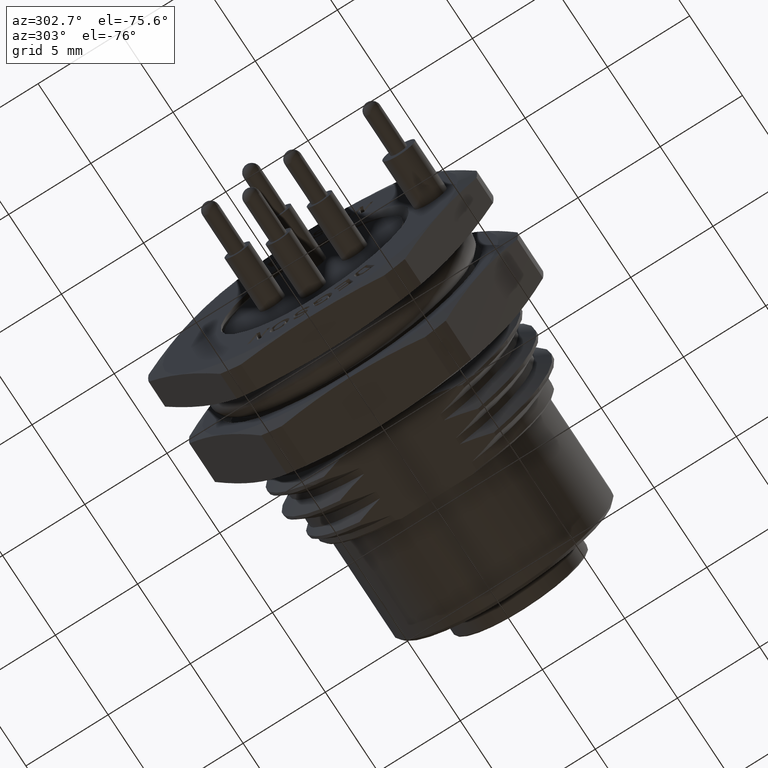
[diagram: clean part render]
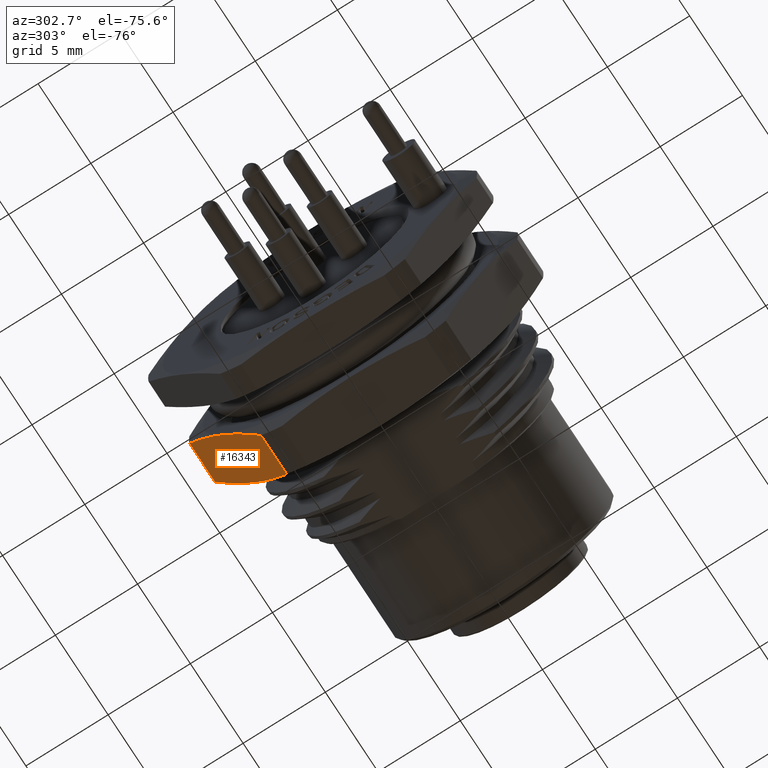
[diagram: same view with one face highlighted and labeled with its STEP entity id]
A machine part, auxiliary view. The second image highlights one B-rep face of the part: STEP entity #16343.
In plain terms, the highlighted planar face has unit normal (0, 0.866, -0.5).
Its self-contained STEP definition (entity closure, byte-faithful):
#4900=CARTESIAN_POINT('',(4.799999999996E0,7.794094807179E0,-4.500231787549E0));
#4901=CARTESIAN_POINT('',(4.800000000784E0,7.613175857834E0,-4.813571074240E0));
#4902=CARTESIAN_POINT('',(4.787489331623E0,7.251496517255E0,-5.439975034983E0));
#4903=CARTESIAN_POINT('',(4.731211796345E0,6.705928364109E0,-6.384861884185E0));
#4904=CARTESIAN_POINT('',(4.641583224885E0,6.167885164156E0,-7.316716027035E0));
#4905=CARTESIAN_POINT('',(4.559098535769E0,5.799772026627E0,-7.954262886315E0));
#4906=CARTESIAN_POINT('',(4.512706594883E0,5.614533010990E0,-8.275084233318E0));
#4908=DIRECTION('',(1.E0,0.E0,0.E0));
#4909=VECTOR('',#4908,2.425413189766E0);
#4910=CARTESIAN_POINT('',(2.087293405117E0,5.614533010990E0,-8.275084233318E0));
#4911=LINE('',#4910,#4909);
#4912=DIRECTION('',(-1.E0,0.E0,0.E0));
#4913=VECTOR('',#4912,2.425413189766E0);
#4914=CARTESIAN_POINT('',(4.512706594883E0,9.973656532832E0,
-7.253794628434E-1));
#4915=LINE('',#4914,#4913);
#4916=CARTESIAN_POINT('',(4.512706594883E0,9.973656532832E0,
-7.253794628434E-1));
#4917=CARTESIAN_POINT('',(4.559102528947E0,9.788401572778E0,-1.046228424491E0));
#4918=CARTESIAN_POINT('',(4.641590267305E0,9.420266095336E0,-1.683813974939E0));
#4919=CARTESIAN_POINT('',(4.731210939355E0,8.882265941672E0,-2.615593564727E0));
#4920=CARTESIAN_POINT('',(4.787490872801E0,8.336675538007E0,-3.560518949663E0));
#4921=CARTESIAN_POINT('',(4.799999999166E0,7.975007425193E0,-4.186903466290E0));
#4922=CARTESIAN_POINT('',(4.799999999996E0,7.794094807179E0,-4.500231787549E0));
#4960=CARTESIAN_POINT('',(1.8E0,7.794094772313E0,-4.500231847390E0));
#4961=CARTESIAN_POINT('',(1.800000000009E0,7.975013736285E0,-4.186892535364E0));
#4962=CARTESIAN_POINT('',(1.812510007759E0,8.336691358921E0,-3.560491549172E0));
#4963=CARTESIAN_POINT('',(1.868791857854E0,8.882286487798E0,-2.615557980169E0));
#4964=CARTESIAN_POINT('',(1.958413007921E0,9.420281820276E0,-1.683786740435E0));
#4965=CARTESIAN_POINT('',(2.040899042671E0,9.788407848114E0,-1.046217556036E0));
#4966=CARTESIAN_POINT('',(2.087293405117E0,9.973656532832E0,
-7.253794628434E-1));
#5141=CARTESIAN_POINT('',(2.087293405117E0,5.614533010990E0,-8.275084233318E0));
#5142=CARTESIAN_POINT('',(2.040899937584E0,5.799778122397E0,-7.954252328856E0));
#5143=CARTESIAN_POINT('',(1.958413593265E0,6.167900443315E0,-7.316689564592E0));
#5144=CARTESIAN_POINT('',(1.868785487649E0,6.705948307564E0,-6.384827343413E0));
#5145=CARTESIAN_POINT('',(1.812509808711E0,7.251511939826E0,-5.439948324394E0));
#5146=CARTESIAN_POINT('',(1.799999999991E0,7.613182011170E0,-4.813560416539E0));
#5147=CARTESIAN_POINT('',(1.8E0,7.794094772313E0,-4.500231847390E0));
#10448=VERTEX_POINT('',#4916);
#10449=VERTEX_POINT('',#4922);
#10459=CARTESIAN_POINT('',(2.087293405117E0,9.973656532831E0,
-7.253794628431E-1));
#10460=VERTEX_POINT('',#10459);
#10492=CARTESIAN_POINT('',(4.512706594883E0,5.614533010990E0,
-8.275084233318E0));
#10494=VERTEX_POINT('',#10492);
#10515=CARTESIAN_POINT('',(2.087293405117E0,5.614533010990E0,
-8.275084233318E0));
#10517=VERTEX_POINT('',#10515);
#10518=VERTEX_POINT('',#5147);
#16326=CARTESIAN_POINT('',(3.300000000149E0,7.794094771911E0,
-4.500231848081E0));
#16327=DIRECTION('',(0.E0,8.660105302122E-1,-5.000257608980E-1));
#16328=DIRECTION('',(0.E0,-5.000257608980E-1,-8.660105302122E-1));
#16329=AXIS2_PLACEMENT_3D('',#16326,#16327,#16328);
#16330=PLANE('',#16329);
#16331=ORIENTED_EDGE('',*,*,#16318,.T.);
#16332=ORIENTED_EDGE('',*,*,#16307,.F.);
#16334=ORIENTED_EDGE('',*,*,#16333,.F.);
#16336=ORIENTED_EDGE('',*,*,#16335,.T.);
#16338=ORIENTED_EDGE('',*,*,#16337,.F.);
#16340=ORIENTED_EDGE('',*,*,#16339,.F.);
#16341=EDGE_LOOP('',(#16331,#16332,#16334,#16336,#16338,#16340));
#16342=FACE_OUTER_BOUND('',#16341,.F.);
#16343=ADVANCED_FACE('',(#16342),#16330,.T.);
#4907=B_SPLINE_CURVE_WITH_KNOTS('',3,(#4900,#4901,#4902,#4903,#4904,#4905,
#4906),.UNSPECIFIED.,.F.,.F.,(4,1,1,1,4),(0.E0,2.5E-1,5.E-1,7.5E-1,1.E0),
.UNSPECIFIED.);
#4923=B_SPLINE_CURVE_WITH_KNOTS('',3,(#4916,#4917,#4918,#4919,#4920,#4921,
#4922),.UNSPECIFIED.,.F.,.F.,(4,1,1,1,4),(0.E0,2.5E-1,5.E-1,7.5E-1,1.E0),
.UNSPECIFIED.);
#4967=B_SPLINE_CURVE_WITH_KNOTS('',3,(#4960,#4961,#4962,#4963,#4964,#4965,
#4966),.UNSPECIFIED.,.F.,.F.,(4,1,1,1,4),(0.E0,2.5E-1,5.E-1,7.5E-1,1.E0),
.UNSPECIFIED.);
#5148=B_SPLINE_CURVE_WITH_KNOTS('',3,(#5141,#5142,#5143,#5144,#5145,#5146,
#5147),.UNSPECIFIED.,.F.,.F.,(4,1,1,1,4),(0.E0,2.5E-1,5.E-1,7.5E-1,1.E0),
.UNSPECIFIED.);
#16307=EDGE_CURVE('',#10449,#10494,#4907,.T.);
#16318=EDGE_CURVE('',#10517,#10494,#4911,.T.);
#16333=EDGE_CURVE('',#10448,#10449,#4923,.T.);
#16335=EDGE_CURVE('',#10448,#10460,#4915,.T.);
#16337=EDGE_CURVE('',#10518,#10460,#4967,.T.);
#16339=EDGE_CURVE('',#10517,#10518,#5148,.T.);